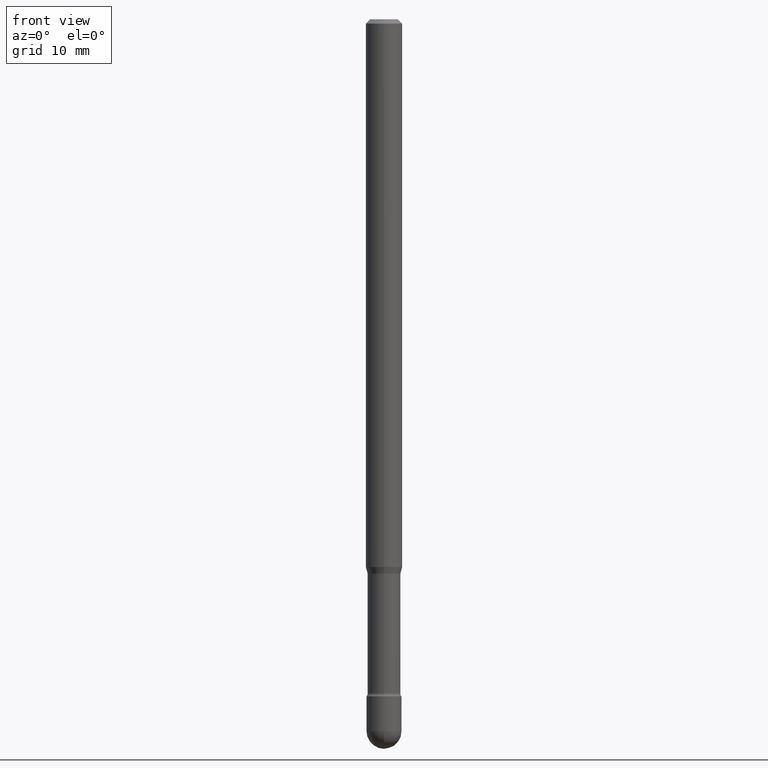
[diagram: clean part render]
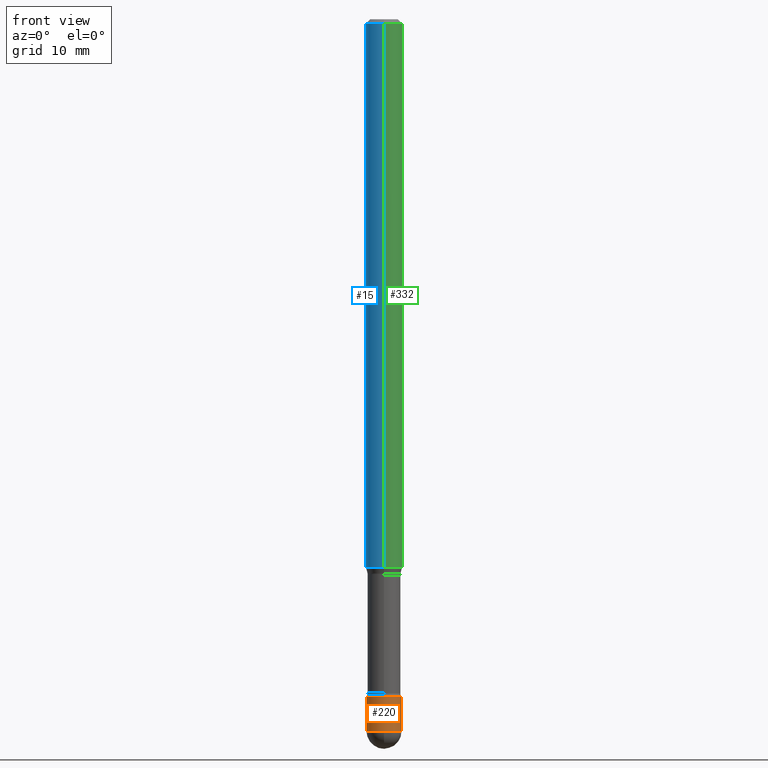
[diagram: same view with three faces highlighted in distinct colors, each labeled with its STEP entity id]
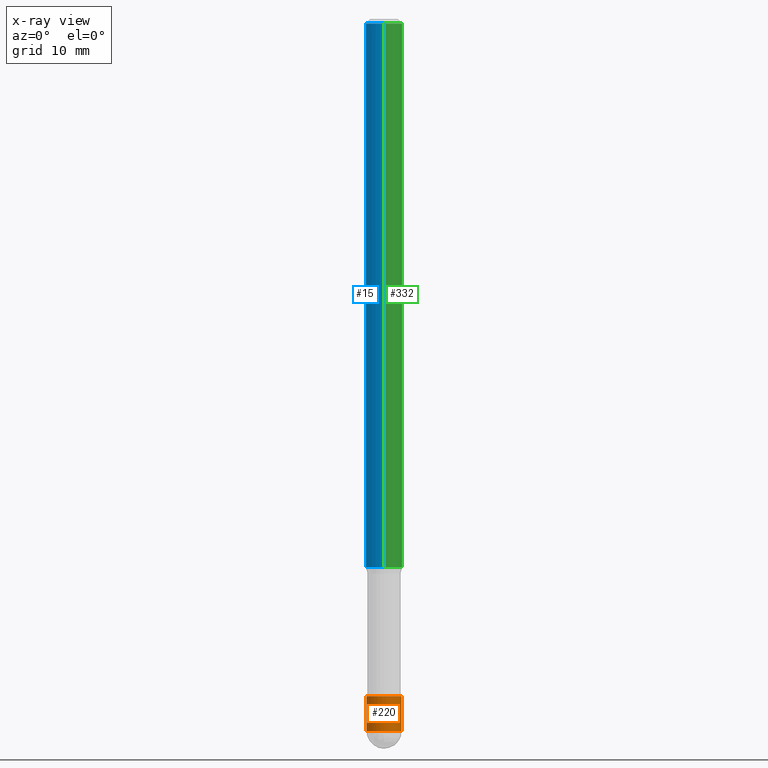
[diagram: x-ray of the same camera — body ghosted, the three highlighted faces saturated]
A machine part, front view with three faces highlighted in distinct colors.
The next image is the same camera in x-ray (body ghosted, the three faces saturated) — at least one of them is partly hidden behind the body in this view.
Their STEP definitions:

[orange] entity #220 — the highlighted cylindrical surface (edge-blend (fillet) strip) has radius 1.524 mm, axis along (-0, 0, 1).
#7 = CIRCLE ( 'NONE', #165, 0.05999999999999999084 ) ;
#36 = EDGE_CURVE ( 'NONE', #469, #494, #7, .T. ) ;
#49 = CIRCLE ( 'NONE', #374, 0.05999999999999999778 ) ;
#52 = EDGE_CURVE ( 'NONE', #56, #316, #551, .T. ) ;
#56 = VERTEX_POINT ( 'NONE', #282 ) ;
#60 = ORIENTED_EDGE ( 'NONE', *, *, #433, .F. ) ;
#62 = ORIENTED_EDGE ( 'NONE', *, *, #156, .T. ) ;
#71 = DIRECTION ( 'NONE',  ( 1.000000000000000000, -6.982962677686266711E-15, 4.876176775795935793E-29 ) ) ;
#73 = DIRECTION ( 'NONE',  ( -2.445468806185136597E-29, 3.491481338843145583E-15, 1.000000000000000000 ) ) ;
#81 = DIRECTION ( 'NONE',  ( 1.000000000000000000, -6.982962677686269077E-15, 0.000000000000000000 ) ) ;
#85 = AXIS2_PLACEMENT_3D ( 'NONE', #125, #123, #71 ) ;
#123 = DIRECTION ( 'NONE',  ( -2.445468806185136597E-29, 3.491481338843145583E-15, 1.000000000000000000 ) ) ;
#125 = CARTESIAN_POINT ( 'NONE',  ( 0.000000000000000000, 0.000000000000000000, 0.000000000000000000 ) ) ;
#140 = AXIS2_PLACEMENT_3D ( 'NONE', #342, #158, #81 ) ;
#151 = EDGE_CURVE ( 'NONE', #56, #469, #335, .T. ) ;
#153 = CARTESIAN_POINT ( 'NONE',  ( -0.05999999999999999084, 4.263256414560600464E-16, -2.951361054152942712E-30 ) ) ;
#156 = EDGE_CURVE ( 'NONE', #494, #242, #480, .T. ) ;
#158 = DIRECTION ( 'NONE',  ( -2.445468806185136597E-29, 3.491481338843145583E-15, 1.000000000000000000 ) ) ;
#165 = AXIS2_PLACEMENT_3D ( 'NONE', #290, #235, #462 ) ;
#220 = ADVANCED_FACE ( 'NONE', ( #393 ), #350, .T. ) ;
#235 = DIRECTION ( 'NONE',  ( -2.445468806185136597E-29, 3.491481338843145583E-15, 1.000000000000000000 ) ) ;
#242 = VERTEX_POINT ( 'NONE', #395 ) ;
#280 = EDGE_LOOP ( 'NONE', ( #314, #409, #460, #62, #60 ) ) ;
#282 = CARTESIAN_POINT ( 'NONE',  ( -0.05999999999999999084, -7.883399944990626241E-15, -2.440000000000000391 ) ) ;
#290 = CARTESIAN_POINT ( 'NONE',  ( 5.966943887091733341E-29, -8.519214466777275048E-15, -2.440000000000000391 ) ) ;
#314 = ORIENTED_EDGE ( 'NONE', *, *, #52, .F. ) ;
#316 = VERTEX_POINT ( 'NONE', #487 ) ;
#321 = VECTOR ( 'NONE', #389, 39.37007874015748143 ) ;
#335 = CIRCLE ( 'NONE', #140, 0.05999999999999999084 ) ;
#338 = DIRECTION ( 'NONE',  ( 1.000000000000000000, -6.982962677686268288E-15, 0.000000000000000000 ) ) ;
#342 = CARTESIAN_POINT ( 'NONE',  ( 5.966943887091733341E-29, -8.519214466777275048E-15, -2.440000000000000391 ) ) ;
#349 = CARTESIAN_POINT ( 'NONE',  ( -4.263256414560001423E-16, -0.06000000000000849792, -2.439999999999999947 ) ) ;
#350 = CYLINDRICAL_SURFACE ( 'NONE', #85, 0.05999999999999999084 ) ;
#374 = AXIS2_PLACEMENT_3D ( 'NONE', #560, #73, #338 ) ;
#389 = DIRECTION ( 'NONE',  ( -2.445468806185136877E-29, 3.491481338843145188E-15, 1.000000000000000000 ) ) ;
#393 = FACE_OUTER_BOUND ( 'NONE', #280, .T. ) ;
#395 = CARTESIAN_POINT ( 'NONE',  ( 0.05999999999999999778, -8.519214466777275048E-15, -2.320000000000000284 ) ) ;
#409 = ORIENTED_EDGE ( 'NONE', *, *, #151, .T. ) ;
#427 = CARTESIAN_POINT ( 'NONE',  ( 0.05999999999999999084, -4.189777606611759435E-16, 2.925706065477561055E-30 ) ) ;
#433 = EDGE_CURVE ( 'NONE', #316, #242, #49, .T. ) ;
#455 = VECTOR ( 'NONE', #544, 39.37007874015748143 ) ;
#460 = ORIENTED_EDGE ( 'NONE', *, *, #36, .T. ) ;
#462 = DIRECTION ( 'NONE',  ( 1.000000000000000000, -6.982962677686269077E-15, 0.000000000000000000 ) ) ;
#469 = VERTEX_POINT ( 'NONE', #349 ) ;
#480 = LINE ( 'NONE', #427, #321 ) ;
#487 = CARTESIAN_POINT ( 'NONE',  ( -0.06000000000000001166, -7.883399944990626241E-15, -2.320000000000000284 ) ) ;
#494 = VERTEX_POINT ( 'NONE', #522 ) ;
#522 = CARTESIAN_POINT ( 'NONE',  ( 0.05999999999999999084, -8.728703347107863365E-15, -2.440000000000000391 ) ) ;
#544 = DIRECTION ( 'NONE',  ( -2.445468806185136877E-29, 3.491481338843145188E-15, 1.000000000000000000 ) ) ;
#551 = LINE ( 'NONE', #153, #455 ) ;
#560 = CARTESIAN_POINT ( 'NONE',  ( 5.673487630349517039E-29, -8.100236706116098414E-15, -2.320000000000000284 ) ) ;

[blue] entity #15 — the highlighted cylindrical surface (edge-blend (fillet) strip) has radius 1.5875 mm, axis along (-0, 0, 1).
#11 = EDGE_CURVE ( 'NONE', #142, #329, #369, .T. ) ;
#15 = ADVANCED_FACE ( 'NONE', ( #547 ), #325, .T. ) ;
#16 = ORIENTED_EDGE ( 'NONE', *, *, #477, .T. ) ;
#20 = DIRECTION ( 'NONE',  ( -2.445516459781718597E-29, 3.491413096180566537E-15, 1.000000000000000000 ) ) ;
#29 = CARTESIAN_POINT ( 'NONE',  ( -4.364351673553916201E-16, -0.06250000000000000000, 6.962867174025315211E-16 ) ) ;
#44 = CARTESIAN_POINT ( 'NONE',  ( 4.440892098501086659E-16, 0.06249999999999993755, -0.01500000000000030129 ) ) ;
#54 = ORIENTED_EDGE ( 'NONE', *, *, #236, .T. ) ;
#79 = DIRECTION ( 'NONE',  ( -2.445516459781718597E-29, 3.491413096180566537E-15, 1.000000000000000000 ) ) ;
#105 = VERTEX_POINT ( 'NONE', #473 ) ;
#114 = ORIENTED_EDGE ( 'NONE', *, *, #386, .F. ) ;
#130 = AXIS2_PLACEMENT_3D ( 'NONE', #159, #432, #208 ) ;
#142 = VERTEX_POINT ( 'NONE', #521 ) ;
#149 = DIRECTION ( 'NONE',  ( -6.982962677686265922E-15, -1.000000000000000000, 3.491413096180567326E-15 ) ) ;
#155 = CARTESIAN_POINT ( 'NONE',  ( 4.440892098500625669E-16, 0.06250000000000000000, 2.598600803799606547E-16 ) ) ;
#159 = CARTESIAN_POINT ( 'NONE',  ( 3.668274689672597391E-31, -5.237119644270878574E-17, -0.01500000000000008271 ) ) ;
#160 = DIRECTION ( 'NONE',  ( -2.445516459781718316E-29, 3.491413096180566537E-15, 1.000000000000000000 ) ) ;
#164 = CARTESIAN_POINT ( 'NONE',  ( -4.364351673553456197E-16, -0.06250000000000653644, -1.877234490073830031 ) ) ;
#195 = AXIS2_PLACEMENT_3D ( 'NONE', #468, #160, #339 ) ;
#197 = DIRECTION ( 'NONE',  ( -2.445516459781718316E-29, 3.491413096180566537E-15, 1.000000000000000000 ) ) ;
#208 = DIRECTION ( 'NONE',  ( -6.982962677686265922E-15, -1.000000000000000000, 3.483106191921935554E-15 ) ) ;
#232 = VECTOR ( 'NONE', #20, 39.37007874015748143 ) ;
#236 = EDGE_CURVE ( 'NONE', #142, #436, #357, .T. ) ;
#240 = EDGE_LOOP ( 'NONE', ( #466, #54, #16, #114 ) ) ;
#325 = CYLINDRICAL_SURFACE ( 'NONE', #506, 0.06250000000000000000 ) ;
#329 = VERTEX_POINT ( 'NONE', #44 ) ;
#339 = DIRECTION ( 'NONE',  ( -6.982962677686265922E-15, -1.000000000000000000, 4.370956789862821150E-15 ) ) ;
#357 = CIRCLE ( 'NONE', #195, 0.06250000000000000000 ) ;
#369 = LINE ( 'NONE', #155, #232 ) ;
#386 = EDGE_CURVE ( 'NONE', #329, #105, #564, .T. ) ;
#404 = VECTOR ( 'NONE', #79, 39.37007874015748143 ) ;
#432 = DIRECTION ( 'NONE',  ( -2.445516459781718316E-29, 3.491413096180566537E-15, 1.000000000000000000 ) ) ;
#436 = VERTEX_POINT ( 'NONE', #164 ) ;
#437 = LINE ( 'NONE', #29, #404 ) ;
#461 = CARTESIAN_POINT ( 'NONE',  ( -1.169113584055446105E-44, 1.669184350826100908E-30, 4.780733988912460139E-16 ) ) ;
#466 = ORIENTED_EDGE ( 'NONE', *, *, #11, .F. ) ;
#468 = CARTESIAN_POINT ( 'NONE',  ( 4.590807844345492513E-29, -6.554201083245618792E-15, -1.877234490073830253 ) ) ;
#473 = CARTESIAN_POINT ( 'NONE',  ( -4.364351673553912750E-16, -0.06250000000000005551, -0.01499999999999986587 ) ) ;
#477 = EDGE_CURVE ( 'NONE', #436, #105, #437, .T. ) ;
#506 = AXIS2_PLACEMENT_3D ( 'NONE', #461, #197, #149 ) ;
#521 = CARTESIAN_POINT ( 'NONE',  ( 4.440892098501085673E-16, 0.06249999999999347050, -1.877234490073830475 ) ) ;
#547 = FACE_OUTER_BOUND ( 'NONE', #240, .T. ) ;
#564 = CIRCLE ( 'NONE', #130, 0.06250000000000000000 ) ;

[green] entity #332 — the highlighted cylindrical surface (edge-blend (fillet) strip) has radius 1.5875 mm, axis along (-0, 0, 1).
#2 = DIRECTION ( 'NONE',  ( -6.982962677686265922E-15, -1.000000000000000000, 4.370956789862821150E-15 ) ) ;
#11 = EDGE_CURVE ( 'NONE', #142, #329, #369, .T. ) ;
#20 = DIRECTION ( 'NONE',  ( -2.445516459781718597E-29, 3.491413096180566537E-15, 1.000000000000000000 ) ) ;
#21 = CIRCLE ( 'NONE', #428, 0.06250000000000000000 ) ;
#29 = CARTESIAN_POINT ( 'NONE',  ( -4.364351673553916201E-16, -0.06250000000000000000, 6.962867174025315211E-16 ) ) ;
#44 = CARTESIAN_POINT ( 'NONE',  ( 4.440892098501086659E-16, 0.06249999999999993755, -0.01500000000000030129 ) ) ;
#77 = EDGE_CURVE ( 'NONE', #105, #329, #21, .T. ) ;
#79 = DIRECTION ( 'NONE',  ( -2.445516459781718597E-29, 3.491413096180566537E-15, 1.000000000000000000 ) ) ;
#88 = CARTESIAN_POINT ( 'NONE',  ( -1.169113584055446105E-44, 1.669184350826100908E-30, 4.780733988912460139E-16 ) ) ;
#94 = ORIENTED_EDGE ( 'NONE', *, *, #477, .F. ) ;
#105 = VERTEX_POINT ( 'NONE', #473 ) ;
#142 = VERTEX_POINT ( 'NONE', #521 ) ;
#145 = DIRECTION ( 'NONE',  ( -2.445516459781718316E-29, 3.491413096180566537E-15, 1.000000000000000000 ) ) ;
#155 = CARTESIAN_POINT ( 'NONE',  ( 4.440892098500625669E-16, 0.06250000000000000000, 2.598600803799606547E-16 ) ) ;
#164 = CARTESIAN_POINT ( 'NONE',  ( -4.364351673553456197E-16, -0.06250000000000653644, -1.877234490073830031 ) ) ;
#169 = DIRECTION ( 'NONE',  ( -2.445516459781718316E-29, 3.491413096180566537E-15, 1.000000000000000000 ) ) ;
#192 = ORIENTED_EDGE ( 'NONE', *, *, #434, .T. ) ;
#196 = AXIS2_PLACEMENT_3D ( 'NONE', #210, #169, #2 ) ;
#210 = CARTESIAN_POINT ( 'NONE',  ( 4.590807844345492513E-29, -6.554201083245618792E-15, -1.877234490073830253 ) ) ;
#219 = FACE_OUTER_BOUND ( 'NONE', #504, .T. ) ;
#232 = VECTOR ( 'NONE', #20, 39.37007874015748143 ) ;
#261 = DIRECTION ( 'NONE',  ( -6.982962677686265922E-15, -1.000000000000000000, 3.491413096180567326E-15 ) ) ;
#313 = CYLINDRICAL_SURFACE ( 'NONE', #346, 0.06250000000000000000 ) ;
#329 = VERTEX_POINT ( 'NONE', #44 ) ;
#332 = ADVANCED_FACE ( 'NONE', ( #219 ), #313, .T. ) ;
#346 = AXIS2_PLACEMENT_3D ( 'NONE', #88, #394, #261 ) ;
#369 = LINE ( 'NONE', #155, #232 ) ;
#394 = DIRECTION ( 'NONE',  ( -2.445516459781718316E-29, 3.491413096180566537E-15, 1.000000000000000000 ) ) ;
#404 = VECTOR ( 'NONE', #79, 39.37007874015748143 ) ;
#428 = AXIS2_PLACEMENT_3D ( 'NONE', #464, #145, #508 ) ;
#434 = EDGE_CURVE ( 'NONE', #436, #142, #519, .T. ) ;
#436 = VERTEX_POINT ( 'NONE', #164 ) ;
#437 = LINE ( 'NONE', #29, #404 ) ;
#464 = CARTESIAN_POINT ( 'NONE',  ( 3.668274689672597391E-31, -5.237119644270878574E-17, -0.01500000000000008271 ) ) ;
#472 = ORIENTED_EDGE ( 'NONE', *, *, #77, .F. ) ;
#473 = CARTESIAN_POINT ( 'NONE',  ( -4.364351673553912750E-16, -0.06250000000000005551, -0.01499999999999986587 ) ) ;
#477 = EDGE_CURVE ( 'NONE', #436, #105, #437, .T. ) ;
#493 = ORIENTED_EDGE ( 'NONE', *, *, #11, .T. ) ;
#504 = EDGE_LOOP ( 'NONE', ( #192, #493, #472, #94 ) ) ;
#508 = DIRECTION ( 'NONE',  ( -6.982962677686265922E-15, -1.000000000000000000, 3.483106191921935554E-15 ) ) ;
#519 = CIRCLE ( 'NONE', #196, 0.06250000000000000000 ) ;
#521 = CARTESIAN_POINT ( 'NONE',  ( 4.440892098501085673E-16, 0.06249999999999347050, -1.877234490073830475 ) ) ;